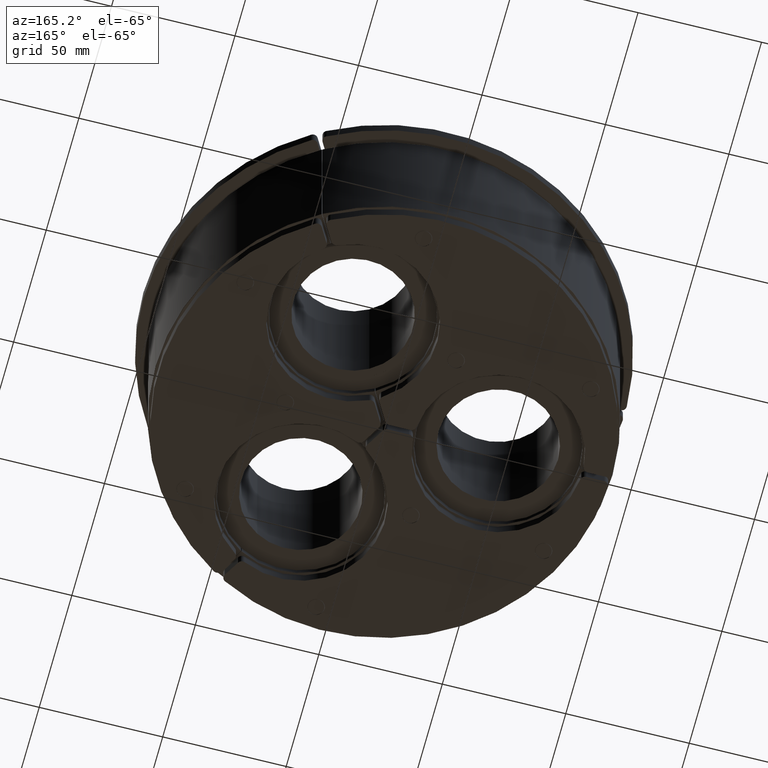
[diagram: clean part render]
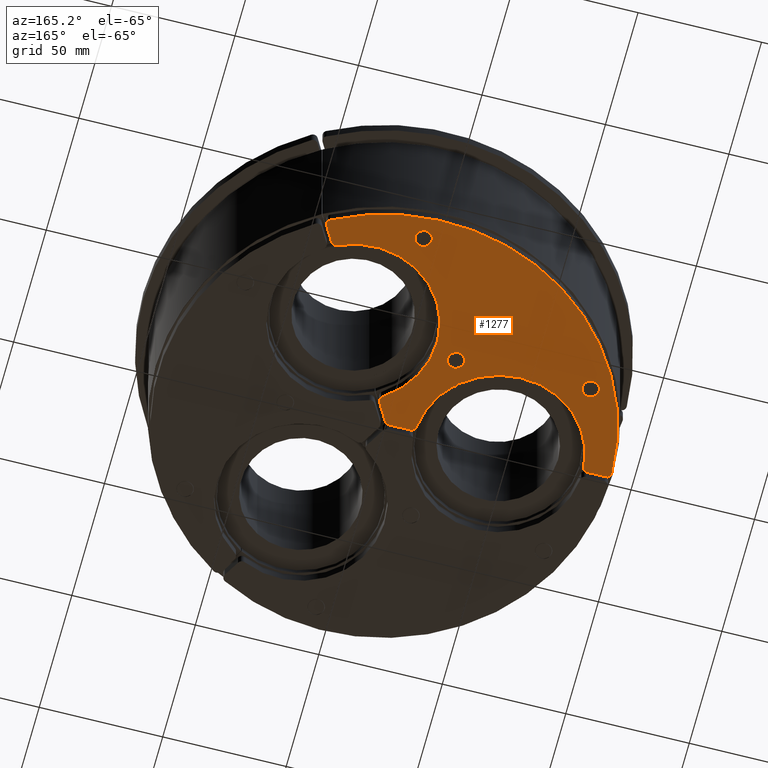
[diagram: same view with one face highlighted and labeled with its STEP entity id]
A machine part, auxiliary view. The second image highlights one B-rep face of the part: STEP entity #1277.
In plain terms, the highlighted planar face has unit normal (0, 0, -1).
Its self-contained STEP definition (entity closure, byte-faithful):
#879=CARTESIAN_POINT('',(43.068157551314059,80.73031527954781,5.0));
#880=VERTEX_POINT('',#879);
#881=CARTESIAN_POINT('',(43.858827865958048,77.965718224257159,5.0));
#882=VERTEX_POINT('',#881);
#883=CARTESIAN_POINT('',(42.126777058389173,78.965718224257159,5.0));
#884=DIRECTION('',(0.0,0.0,-1.0));
#885=DIRECTION('',(0.961451760249235,0.274973658217741,0.0));
#886=AXIS2_PLACEMENT_3D('',#883,#884,#885);
#887=CIRCLE('',#886,2.0);
#888=EDGE_CURVE('',#880,#882,#887,.T.);
#931=CARTESIAN_POINT('',(-91.448582663272475,3.067039106145245,5.0));
#932=VERTEX_POINT('',#931);
#939=CARTESIAN_POINT('',(0.0,0.0,5.0));
#940=DIRECTION('',(0.0,0.0,-1.0));
#941=DIRECTION('',(0.490505380045763,0.871438163122411,0.0));
#942=AXIS2_PLACEMENT_3D('',#939,#940,#941);
#943=CIRCLE('',#942,91.5);
#944=EDGE_CURVE('',#932,#880,#943,.T.);
#1100=CARTESIAN_POINT('',(40.19636571086761,71.622147690842283,5.0));
#1101=VERTEX_POINT('',#1100);
#1108=CARTESIAN_POINT('',(37.612130742004354,70.812788092741641,5.0));
#1109=VERTEX_POINT('',#1108);
#1110=CARTESIAN_POINT('',(38.464314903298735,72.622147690842297,5.0));
#1111=DIRECTION('',(0.0,0.0,-1.0));
#1112=DIRECTION('',(0.298875839005933,-0.954292006074922,0.0));
#1113=AXIS2_PLACEMENT_3D('',#1110,#1111,#1112);
#1114=CIRCLE('',#1113,2.0);
#1115=EDGE_CURVE('',#1101,#1109,#1114,.T.);
#1132=CARTESIAN_POINT('',(3.730391969883771,12.12789509065232,5.0));
#1133=VERTEX_POINT('',#1132);
#1134=CARTESIAN_POINT('',(23.124999999999979,40.053674925030307,5.0));
#1135=DIRECTION('',(0.0,0.0,-1.0));
#1136=DIRECTION('',(-1.0,0.0,0.0));
#1137=AXIS2_PLACEMENT_3D('',#1134,#1135,#1136);
#1138=CIRCLE('',#1137,34.0);
#1139=EDGE_CURVE('',#1133,#1109,#1138,.T.);
#1151=CARTESIAN_POINT('',(-24.495173711342311,42.426885408270358,5.0));
#1152=DIRECTION('',(0.0,0.0,1.0));
#1153=DIRECTION('',(1.0,0.0,0.0));
#1154=AXIS2_PLACEMENT_3D('',#1151,#1152,#1153);
#1155=PLANE('',#1154);
#1156=ORIENTED_EDGE('',*,*,#888,.F.);
#1157=ORIENTED_EDGE('',*,*,#944,.F.);
#1158=CARTESIAN_POINT('',(-89.449706539485092,1.0,5.0));
#1159=VERTEX_POINT('',#1158);
#1160=CARTESIAN_POINT('',(-89.449706539485092,2.999999999999994,5.0));
#1161=DIRECTION('',(0.0,0.0,-1.0));
#1162=DIRECTION('',(-0.718860053512724,-0.69515481978023,0.0));
#1163=AXIS2_PLACEMENT_3D('',#1160,#1161,#1162);
#1164=CIRCLE('',#1163,2.0);
#1165=EDGE_CURVE('',#1159,#932,#1164,.T.);
#1166=ORIENTED_EDGE('',*,*,#1165,.F.);
#1167=CARTESIAN_POINT('',(-82.124782229304202,1.0,5.0));
#1168=VERTEX_POINT('',#1167);
#1169=CARTESIAN_POINT('',(-82.124782229304202,1.0,5.0));
#1170=DIRECTION('',(-1.0,0.0,0.0));
#1171=VECTOR('',#1170,7.32492431018089);
#1172=LINE('',#1169,#1171);
#1173=EDGE_CURVE('',#1168,#1159,#1172,.T.);
#1174=ORIENTED_EDGE('',*,*,#1173,.F.);
#1175=CARTESIAN_POINT('',(-80.131738772120627,2.833333333333334,5.0));
#1176=VERTEX_POINT('',#1175);
#1177=CARTESIAN_POINT('',(-82.124782229304202,3.0,5.0));
#1178=DIRECTION('',(0.0,0.0,-1.0));
#1179=DIRECTION('',(0.67700320038633,-0.735980072193987,0.0));
#1180=AXIS2_PLACEMENT_3D('',#1177,#1178,#1179);
#1181=CIRCLE('',#1180,2.0);
#1182=EDGE_CURVE('',#1176,#1168,#1181,.T.);
#1183=ORIENTED_EDGE('',*,*,#1182,.F.);
#1184=CARTESIAN_POINT('',(-12.368261227879366,2.833333333333339,5.0));
#1185=VERTEX_POINT('',#1184);
#1186=CARTESIAN_POINT('',(-46.25,1.363723E-016,5.0));
#1187=DIRECTION('',(0.0,0.0,-1.0));
#1188=DIRECTION('',(-1.0,0.0,0.0));
#1189=AXIS2_PLACEMENT_3D('',#1186,#1187,#1188);
#1190=CIRCLE('',#1189,34.0);
#1191=EDGE_CURVE('',#1176,#1185,#1190,.T.);
#1192=ORIENTED_EDGE('',*,*,#1191,.T.);
#1193=CARTESIAN_POINT('',(-10.375217770695802,1.0,5.0));
#1194=VERTEX_POINT('',#1193);
#1195=CARTESIAN_POINT('',(-10.375217770695802,3.000000000000005,5.0));
#1196=DIRECTION('',(0.0,0.0,-1.0));
#1197=DIRECTION('',(-0.677003200386329,-0.735980072193988,0.0));
#1198=AXIS2_PLACEMENT_3D('',#1195,#1196,#1197);
#1199=CIRCLE('',#1198,2.0);
#1200=EDGE_CURVE('',#1194,#1185,#1199,.T.);
#1201=ORIENTED_EDGE('',*,*,#1200,.F.);
#1202=CARTESIAN_POINT('',(-1.732050807568868,1.0,5.0));
#1203=VERTEX_POINT('',#1202);
#1204=CARTESIAN_POINT('',(-1.732050807568868,1.0,5.0));
#1205=DIRECTION('',(-1.0,0.0,0.0));
#1206=VECTOR('',#1205,8.64316696312693);
#1207=LINE('',#1204,#1206);
#1208=EDGE_CURVE('',#1203,#1194,#1207,.T.);
#1209=ORIENTED_EDGE('',*,*,#1208,.F.);
#1210=CARTESIAN_POINT('',(5.689893E-015,2.000000000000007,5.0));
#1211=VERTEX_POINT('',#1210);
#1212=CARTESIAN_POINT('',(-1.732050807568868,3.000000000000003,5.0));
#1213=DIRECTION('',(0.0,0.0,-1.0));
#1214=DIRECTION('',(0.5,-0.866025403784438,0.0));
#1215=AXIS2_PLACEMENT_3D('',#1212,#1213,#1214);
#1216=CIRCLE('',#1215,2.0);
#1217=EDGE_CURVE('',#1211,#1203,#1216,.T.);
#1218=ORIENTED_EDGE('',*,*,#1217,.F.);
#1219=CARTESIAN_POINT('',(4.321583481563462,9.485202159218325,5.0));
#1220=VERTEX_POINT('',#1219);
#1221=CARTESIAN_POINT('',(4.321583481563461,9.485202159218323,5.0));
#1222=DIRECTION('',(-0.499999999999999,-0.866025403784439,0.0));
#1223=VECTOR('',#1222,8.643166963126921);
#1224=LINE('',#1221,#1223);
#1225=EDGE_CURVE('',#1220,#1211,#1224,.T.);
#1226=ORIENTED_EDGE('',*,*,#1225,.F.);
#1227=CARTESIAN_POINT('',(2.589532673994581,10.485202159218323,5.0));
#1228=DIRECTION('',(0.0,0.0,-1.0));
#1229=DIRECTION('',(0.975879039392263,0.218311933880935,0.0));
#1230=AXIS2_PLACEMENT_3D('',#1227,#1228,#1229);
#1231=CIRCLE('',#1230,2.0);
#1232=EDGE_CURVE('',#1133,#1220,#1231,.T.);
#1233=ORIENTED_EDGE('',*,*,#1232,.F.);
#1234=ORIENTED_EDGE('',*,*,#1139,.T.);
#1235=ORIENTED_EDGE('',*,*,#1115,.F.);
#1236=CARTESIAN_POINT('',(43.858827865958048,77.965718224257159,5.0));
#1237=DIRECTION('',(-0.499999999999999,-0.866025403784439,0.0));
#1238=VECTOR('',#1237,7.324924310180892);
#1239=LINE('',#1236,#1238);
#1240=EDGE_CURVE('',#882,#1101,#1239,.T.);
#1241=ORIENTED_EDGE('',*,*,#1240,.F.);
#1242=EDGE_LOOP('',(#1156,#1157,#1166,#1174,#1183,#1192,#1201,#1209,#1218,#1226,#1233,#1234,#1235,#1241));
#1243=FACE_OUTER_BOUND('',#1242,.T.);
#1244=CARTESIAN_POINT('',(9.154909083890345,82.299034146435517,5.0));
#1245=VERTEX_POINT('',#1244);
#1246=CARTESIAN_POINT('',(5.754909083890347,82.299034146435517,5.0));
#1247=DIRECTION('',(0.0,0.0,-1.0));
#1248=DIRECTION('',(-1.0,0.0,0.0));
#1249=AXIS2_PLACEMENT_3D('',#1246,#1247,#1248);
#1250=CIRCLE('',#1249,3.399999999999999);
#1251=EDGE_CURVE('',#1245,#1245,#1250,.T.);
#1252=ORIENTED_EDGE('',*,*,#1251,.T.);
#1253=EDGE_LOOP('',(#1252));
#1254=FACE_BOUND('',#1253,.T.);
#1255=CARTESIAN_POINT('',(-16.599999999999998,34.641016151377542,5.0));
#1256=VERTEX_POINT('',#1255);
#1257=CARTESIAN_POINT('',(-19.999999999999996,34.641016151377542,5.0));
#1258=DIRECTION('',(0.0,0.0,-1.0));
#1259=DIRECTION('',(-1.0,0.0,0.0));
#1260=AXIS2_PLACEMENT_3D('',#1257,#1258,#1259);
#1261=CIRCLE('',#1260,3.4);
#1262=EDGE_CURVE('',#1256,#1256,#1261,.T.);
#1263=ORIENTED_EDGE('',*,*,#1262,.T.);
#1264=EDGE_LOOP('',(#1263));
#1265=FACE_BOUND('',#1264,.T.);
#1266=CARTESIAN_POINT('',(-70.750508819681272,36.165619610098886,5.0));
#1267=VERTEX_POINT('',#1266);
#1268=CARTESIAN_POINT('',(-74.150508819681264,36.165619610098886,5.0));
#1269=DIRECTION('',(0.0,0.0,-1.0));
#1270=DIRECTION('',(-1.0,0.0,0.0));
#1271=AXIS2_PLACEMENT_3D('',#1268,#1269,#1270);
#1272=CIRCLE('',#1271,3.399999999999997);
#1273=EDGE_CURVE('',#1267,#1267,#1272,.T.);
#1274=ORIENTED_EDGE('',*,*,#1273,.T.);
#1275=EDGE_LOOP('',(#1274));
#1276=FACE_BOUND('',#1275,.T.);
#1277=ADVANCED_FACE('',(#1243,#1254,#1265,#1276),#1155,.T.);